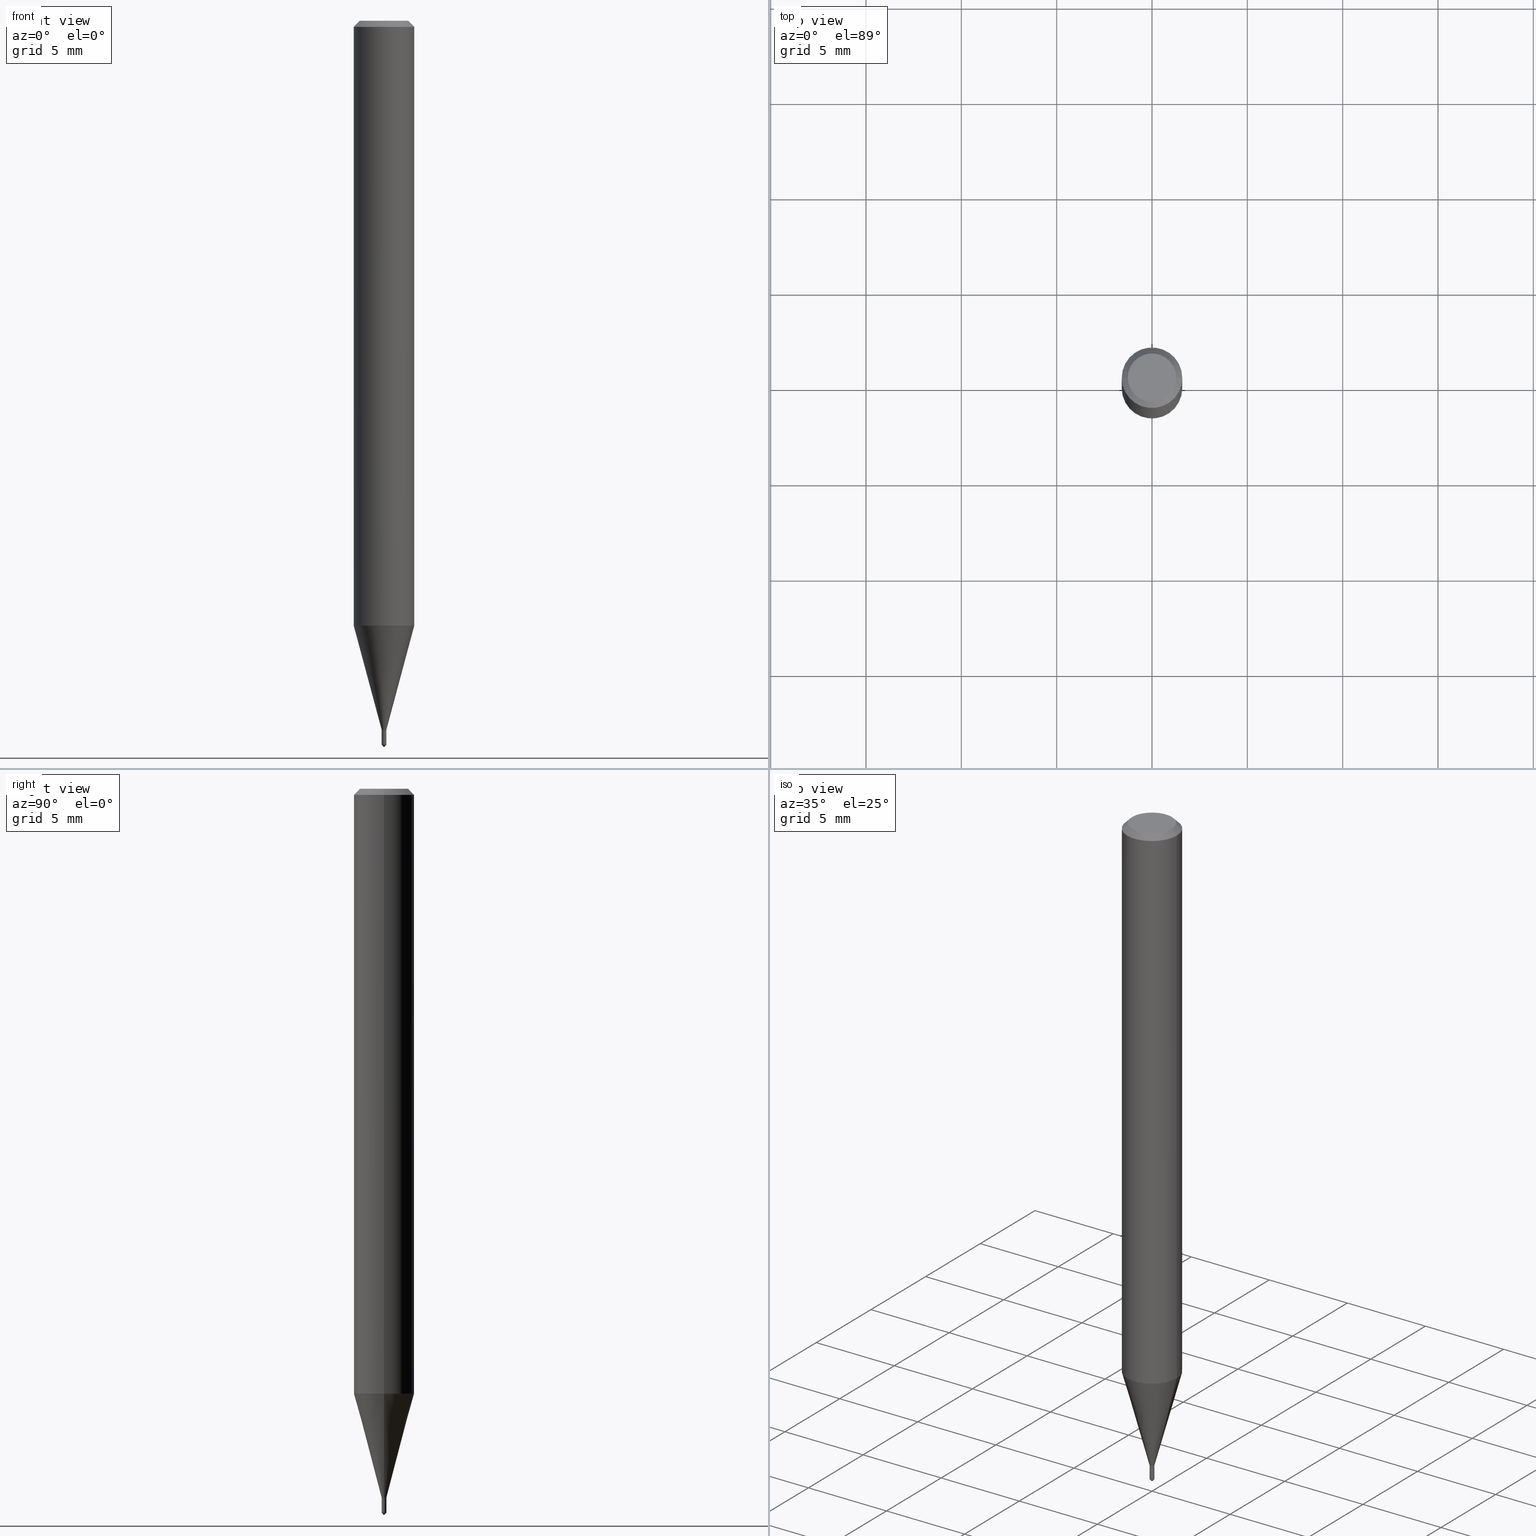
[diagram: canonical four-view strip — front | top / right | iso, engineering-drawing reading convention]
A machine part, canonical four-view strip (front | top / right | iso — engineering-drawing reading convention). The complete STEP part file that produces these views, byte-faithful:
ISO-10303-21;
HEADER;
FILE_DESCRIPTION (( 'STEP AP203' ),
    '1' );
FILE_NAME ('07001.STEP',
    '2024-04-23T19:12:28',
    ( '' ),
    ( '' ),
    'SwSTEP 2.0',
    'SolidWorks 2023',
    '' );
FILE_SCHEMA (( 'CONFIG_CONTROL_DESIGN' ));
ENDSEC;

DATA;
#1 = CARTESIAN_POINT ( 'NONE',  ( 3.578943597851948324E-29, -5.109782939396945261E-15, -1.463500000000000467 ) ) ;
#2 = PRODUCT_DEFINITION ( 'UNKNOWN', '', #485, #318 ) ;
#3 = DIRECTION ( 'NONE',  ( 1.000000000000000000, -6.982962677686267499E-15, 4.876176775795936353E-29 ) ) ;
#4 = ORIENTED_EDGE ( 'NONE', *, *, #297, .F. ) ;
#5 = CYLINDRICAL_SURFACE ( 'NONE', #311, 0.06250000000000006939 ) ;
#6 = CONICAL_SURFACE ( 'NONE', #61, 39.37007874015640851, 0.7853981633974347343 ) ;
#7 = ORIENTED_EDGE ( 'NONE', *, *, #279, .F. ) ;
#8 = ADVANCED_FACE ( 'NONE', ( #66 ), #212, .T. ) ;
#9 = DIRECTION ( 'NONE',  ( 1.000000000000000000, 0.000000000000000000, 0.000000000000000000 ) ) ;
#10 = COORDINATED_UNIVERSAL_TIME_OFFSET ( 5, 0, .BEHIND. ) ;
#11 = AXIS2_PLACEMENT_3D ( 'NONE', #159, #467, #230 ) ;
#12 = DIRECTION ( 'NONE',  ( -2.420277090842882143E-29, 3.527557309036647564E-15, 1.000000000000000000 ) ) ;
#13 = CARTESIAN_POINT ( 'NONE',  ( 3.893286209682126177E-47, -5.558580879666067980E-33, -1.592040838891559689E-18 ) ) ;
#14 = DATE_AND_TIME ( #78, #69 ) ;
#15 = DIRECTION ( 'NONE',  ( 1.000000000000000000, -6.982962677686332975E-15, 0.000000000000000000 ) ) ;
#16 = CIRCLE ( 'NONE', #379, 0.005000000000000000104 ) ;
#17 = EDGE_LOOP ( 'NONE', ( #452, #240, #247, #253 ) ) ;
#18 = PERSON_AND_ORGANIZATION_ROLE ( 'classification_officer' ) ;
#19 = CYLINDRICAL_SURFACE ( 'NONE', #11, 0.005000000000000000104 ) ;
#20 = ADVANCED_FACE ( 'NONE', ( #38 ), #371, .T. ) ;
#21 = ORIENTED_EDGE ( 'NONE', *, *, #314, .T. ) ;
#22 = CYLINDRICAL_SURFACE ( 'NONE', #324, 0.005000000000000000104 ) ;
#23 = ORIENTED_EDGE ( 'NONE', *, *, #59, .T. ) ;
#24 = CARTESIAN_POINT ( 'NONE',  ( 0.004999999999999999237, -5.144697752785376910E-15, -1.463500000000000467 ) ) ;
#25 = ORIENTED_EDGE ( 'NONE', *, *, #158, .F. ) ;
#26 = LINE ( 'NONE', #135, #312 ) ;
#27 = VECTOR ( 'NONE', #336, 39.37007874015748143 ) ;
#28 = ORIENTED_EDGE ( 'NONE', *, *, #40, .F. ) ;
#29 = DIRECTION ( 'NONE',  ( 1.000000000000000000, -6.982962677686265922E-15, 4.876176775795935793E-29 ) ) ;
#30 = CARTESIAN_POINT ( 'NONE',  ( -9.161917814024282472E-28, 1.336417243499693348E-13, 37.87007874015748143 ) ) ;
#31 = DIRECTION ( 'NONE',  ( 1.000000000000000000, -6.982962677686332975E-15, 0.000000000000000000 ) ) ;
#32 = ORIENTED_EDGE ( 'NONE', *, *, #357, .T. ) ;
#33 = CARTESIAN_POINT ( 'NONE',  ( -3.491481338839550324E-17, -0.005000000000005114936, -1.465000000000000302 ) ) ;
#34 = VECTOR ( 'NONE', #228, 39.37007874015748143 ) ;
#35 = EDGE_CURVE ( 'NONE', #111, #294, #302, .T. ) ;
#36 = CARTESIAN_POINT ( 'NONE',  ( 0.000000000000000000, 0.000000000000000000, 0.000000000000000000 ) ) ;
#37 = CARTESIAN_POINT ( 'NONE',  ( -0.004500000000000000527, -5.080396511121893639E-15, -1.465000000000000080 ) ) ;
#38 = FACE_OUTER_BOUND ( 'NONE', #438, .T. ) ;
#39 = EDGE_LOOP ( 'NONE', ( #23, #484, #308, #185 ) ) ;
#40 = EDGE_CURVE ( 'NONE', #152, #478, #458, .T. ) ;
#41 = DIRECTION ( 'NONE',  ( -2.445468806185136597E-29, 3.491481338843145583E-15, 1.000000000000000000 ) ) ;
#42 = EDGE_CURVE ( 'NONE', #362, #390, #239, .T. ) ;
#43 = LENGTH_MEASURE_WITH_UNIT ( LENGTH_MEASURE( 0.02539999999999999897 ), #225 );
#44 = DIRECTION ( 'NONE',  ( -2.445468806185136597E-29, 3.491481338843145583E-15, 1.000000000000000000 ) ) ;
#45 = CIRCLE ( 'NONE', #322, 0.005000000000000000971 ) ;
#46 = CLOSED_SHELL ( 'NONE', ( #95, #332, #8, #123, #50 ) ) ;
#47 = COORDINATED_UNIVERSAL_TIME_OFFSET ( 5, 0, .BEHIND. ) ;
#48 = CARTESIAN_POINT ( 'NONE',  ( 3.581389066658133367E-29, -5.113274420735787479E-15, -1.464500000000000357 ) ) ;
#49 = CARTESIAN_POINT ( 'NONE',  ( 3.582611801061225608E-29, -5.115020161405208983E-15, -1.465000000000000302 ) ) ;
#50 = ADVANCED_FACE ( 'NONE', ( #455 ), #405, .F. ) ;
#51 = DIRECTION ( 'NONE',  ( 0.2588190451025213501, 1.565188264969621968E-15, 0.9659258262890682012 ) ) ;
#52 = EDGE_LOOP ( 'NONE', ( #210, #60, #179, #236 ) ) ;
#53 = CIRCLE ( 'NONE', #360, 0.04999999999999999584 ) ;
#54 = DIRECTION ( 'NONE',  ( 1.000000000000000000, -6.982962677686224112E-15, 0.000000000000000000 ) ) ;
#55 = EDGE_LOOP ( 'NONE', ( #413, #401 ) ) ;
#56 = CARTESIAN_POINT ( 'NONE',  ( 3.581389066658133367E-29, -5.113274420735787479E-15, -1.464500000000000357 ) ) ;
#57 = VERTEX_POINT ( 'NONE', #183 ) ;
#58 = DIRECTION ( 'NONE',  ( -6.982962677686265922E-15, -1.000000000000000000, 0.000000000000000000 ) ) ;
#59 = EDGE_CURVE ( 'NONE', #390, #362, #487, .T. ) ;
#60 = ORIENTED_EDGE ( 'NONE', *, *, #104, .T. ) ;
#61 = AXIS2_PLACEMENT_3D ( 'NONE', #473, #409, #292 ) ;
#62 = FACE_OUTER_BOUND ( 'NONE', #445, .T. ) ;
#63 = CARTESIAN_POINT ( 'NONE',  ( 3.578943597851948324E-29, -5.109782939396945261E-15, -1.463500000000000467 ) ) ;
#64 = APPLICATION_CONTEXT ( 'configuration controlled 3d designs of mechanical parts and assemblies' ) ;
#65 = CARTESIAN_POINT ( 'NONE',  ( 3.056836007731441415E-31, -4.364351673553961684E-17, -0.01250000000000008396 ) ) ;
#66 = FACE_OUTER_BOUND ( 'NONE', #434, .T. ) ;
#67 = DIRECTION ( 'NONE',  ( -2.445468806185136597E-29, 3.491481338843145583E-15, 1.000000000000000000 ) ) ;
#68 = DIRECTION ( 'NONE',  ( -6.982962677686266711E-15, -1.000000000000000000, 0.000000000000000000 ) ) ;
#69 = LOCAL_TIME ( 15, 12, 28.00000000000000000, #47 ) ;
#70 = ORIENTED_EDGE ( 'NONE', *, *, #279, .T. ) ;
#71 = APPLICATION_PROTOCOL_DEFINITION ( 'international standard', 'config_control_design', 1994, #164 ) ;
#72 = ORIENTED_EDGE ( 'NONE', *, *, #175, .T. ) ;
#73 = EDGE_CURVE ( 'NONE', #488, #315, #376, .T. ) ;
#74 = FACE_OUTER_BOUND ( 'NONE', #289, .T. ) ;
#75 = VECTOR ( 'NONE', #76, 39.37007874015748143 ) ;
#76 = DIRECTION ( 'NONE',  ( -2.445468806185136877E-29, 3.491481338843145188E-15, 1.000000000000000000 ) ) ;
#77 = LINE ( 'NONE', #304, #75 ) ;
#78 = CALENDAR_DATE ( 2024, 23, 4 ) ;
#79 = CARTESIAN_POINT ( 'NONE',  ( 3.655220113786512428E-29, -5.220846880676308788E-15, -1.495000000000000329 ) ) ;
#80 = APPROVAL_DATE_TIME ( #14, #201 ) ;
#81 = PLANE ( 'NONE',  #260 ) ;
#82 = AXIS2_PLACEMENT_3D ( 'NONE', #107, #417, #374 ) ;
#83 = ADVANCED_BREP_SHAPE_REPRESENTATION ( '07001', ( #153, #490, #91 ), #267 ) ;
#84 = AXIS2_PLACEMENT_3D ( 'NONE', #277, #465, #313 ) ;
#85 = APPROVAL_STATUS ( 'not_yet_approved' ) ;
#86 = FACE_OUTER_BOUND ( 'NONE', #176, .T. ) ;
#87 = DATE_AND_TIME ( #343, #368 ) ;
#88 = LINE ( 'NONE', #235, #219 ) ;
#89 = ORIENTED_EDGE ( 'NONE', *, *, #367, .T. ) ;
#90 = DIRECTION ( 'NONE',  ( -2.445468806185136597E-29, 3.491481338843145583E-15, 1.000000000000000000 ) ) ;
#91 = AXIS2_PLACEMENT_3D ( 'NONE', #306, #416, #9 ) ;
#92 = EDGE_LOOP ( 'NONE', ( #94, #32, #99, #259 ) ) ;
#93 = CARTESIAN_POINT ( 'NONE',  ( -0.004999999999999999237, -5.076001543278361723E-15, -1.463500000000000467 ) ) ;
#94 = ORIENTED_EDGE ( 'NONE', *, *, #73, .F. ) ;
#95 = ADVANCED_FACE ( 'NONE', ( #349 ), #22, .T. ) ;
#96 = DIRECTION ( 'NONE',  ( -2.445468806185136877E-29, 3.491481338843145188E-15, 1.000000000000000000 ) ) ;
#97 = ORIENTED_EDGE ( 'NONE', *, *, #211, .T. ) ;
#98 = CARTESIAN_POINT ( 'NONE',  ( 3.582611801061225047E-29, -5.115020161405208194E-15, -1.465000000000000080 ) ) ;
#99 = ORIENTED_EDGE ( 'NONE', *, *, #40, .T. ) ;
#100 = CARTESIAN_POINT ( 'NONE',  ( 0.000000000000000000, 0.000000000000000000, 0.000000000000000000 ) ) ;
#101 = ORIENTED_EDGE ( 'NONE', *, *, #430, .T. ) ;
#102 = EDGE_CURVE ( 'NONE', #471, #200, #53, .T. ) ;
#103 = DIRECTION ( 'NONE',  ( 2.445468806185136597E-29, -3.491481338843145583E-15, -1.000000000000000000 ) ) ;
#104 = EDGE_CURVE ( 'NONE', #315, #478, #192, .T. ) ;
#105 = DIRECTION ( 'NONE',  ( 1.000000000000000000, -6.982962677686267499E-15, 4.876176775795936353E-29 ) ) ;
#106 = DIRECTION ( 'NONE',  ( -2.445468806185136597E-29, 3.491481338843145583E-15, 1.000000000000000000 ) ) ;
#107 = CARTESIAN_POINT ( 'NONE',  ( 3.582611801061225608E-29, -5.115020161405208983E-15, -1.465000000000000302 ) ) ;
#108 = VECTOR ( 'NONE', #426, 39.37007874015748143 ) ;
#109 = LINE ( 'NONE', #226, #474 ) ;
#110 = CONICAL_SURFACE ( 'NONE', #285, 0.004999999999999999237, 0.2617993877991500740 ) ;
#111 = VERTEX_POINT ( 'NONE', #428 ) ;
#112 = FACE_OUTER_BOUND ( 'NONE', #39, .T. ) ;
#113 = PERSON_AND_ORGANIZATION ( #126, #291 ) ;
#114 = CC_DESIGN_APPROVAL ( #201, ( #437 ) ) ;
#115 = CARTESIAN_POINT ( 'NONE',  ( 0.004999999999999999237, -5.148189234124219128E-15, -1.464500000000000357 ) ) ;
#116 = VECTOR ( 'NONE', #12, 39.37007874015748143 ) ;
#117 = EDGE_CURVE ( 'NONE', #111, #396, #346, .T. ) ;
#118 = DIRECTION ( 'NONE',  ( 1.000000000000000000, -6.982962677686269077E-15, 0.000000000000000000 ) ) ;
#119 = CARTESIAN_POINT ( 'NONE',  ( 0.04999999999999999584, -4.077247707424184705E-16, -1.592040838888913461E-18 ) ) ;
#120 = DATE_TIME_ROLE ( 'classification_date' ) ;
#121 = DIRECTION ( 'NONE',  ( -2.445468806185136877E-29, 3.491481338843145188E-15, 1.000000000000000000 ) ) ;
#122 = CIRCLE ( 'NONE', #402, 0.06250000000000000000 ) ;
#123 = ADVANCED_FACE ( 'NONE', ( #309 ), #19, .T. ) ;
#124 = PERSON_AND_ORGANIZATION ( #126, #291 ) ;
#125 = DIRECTION ( 'NONE',  ( -2.445468806185136597E-29, 3.491481338843145583E-15, 1.000000000000000000 ) ) ;
#126 = PERSON ( 'UNSPECIFIED', 'UNSPECIFIED', 'UNSPECIFIED', ('UNSPECIFIED'), ('UNSPECIFIED'), ('UNSPECIFIED') ) ;
#127 = ORIENTED_EDGE ( 'NONE', *, *, #175, .F. ) ;
#128 = COORDINATED_UNIVERSAL_TIME_OFFSET ( 5, 0, .BEHIND. ) ;
#129 = FACE_OUTER_BOUND ( 'NONE', #366, .T. ) ;
#130 = VERTEX_POINT ( 'NONE', #165 ) ;
#131 = CARTESIAN_POINT ( 'NONE',  ( 3.056836007731441415E-31, -4.364351673553961684E-17, -0.01250000000000008396 ) ) ;
#132 = AXIS2_PLACEMENT_3D ( 'NONE', #320, #195, #161 ) ;
#133 = ORIENTED_EDGE ( 'NONE', *, *, #460, .T. ) ;
#134 = AXIS2_PLACEMENT_3D ( 'NONE', #281, #436, #54 ) ;
#135 = CARTESIAN_POINT ( 'NONE',  ( 3.704874603925985375E-29, -5.185633370888012832E-15, -1.500000000000000444 ) ) ;
#136 = CC_DESIGN_PERSON_AND_ORGANIZATION_ASSIGNMENT ( #307, #425, ( #2 ) ) ;
#137 = ORIENTED_EDGE ( 'NONE', *, *, #447, .T. ) ;
#138 = FACE_OUTER_BOUND ( 'NONE', #52, .T. ) ;
#139 = ORIENTED_EDGE ( 'NONE', *, *, #59, .F. ) ;
#140 = LINE ( 'NONE', #252, #456 ) ;
#141 = LOCAL_TIME ( 15, 12, 28.00000000000000000, #423 ) ;
#142 = EDGE_CURVE ( 'NONE', #364, #294, #387, .T. ) ;
#143 = ORIENTED_EDGE ( 'NONE', *, *, #142, .F. ) ;
#144 = AXIS2_PLACEMENT_3D ( 'NONE', #180, #103, #169 ) ;
#145 = LINE ( 'NONE', #33, #250 ) ;
#146 = EDGE_LOOP ( 'NONE', ( #173, #72 ) ) ;
#147 = DIRECTION ( 'NONE',  ( -2.445468806185136597E-29, 3.491481338843145583E-15, 1.000000000000000000 ) ) ;
#148 = ORIENTED_EDGE ( 'NONE', *, *, #177, .T. ) ;
#149 = CONICAL_SURFACE ( 'NONE', #208, 0.004999999999999999237, 0.2617993877991500740 ) ;
#150 = VECTOR ( 'NONE', #121, 39.37007874015748143 ) ;
#151 = DIRECTION ( 'NONE',  ( 0.7071067811865453523, -7.319954787623248157E-15, -0.7071067811865496822 ) ) ;
#152 = VERTEX_POINT ( 'NONE', #270 ) ;
#153 = MANIFOLD_SOLID_BREP ( 'Body-Move/Copy2[1]', #46 ) ;
#154 = DIRECTION ( 'NONE',  ( 1.000000000000000000, -6.982962677686265922E-15, 4.876176775795935793E-29 ) ) ;
#155 = CARTESIAN_POINT ( 'NONE',  ( -0.06250000000000013878, -3.916446548908011993E-15, -1.248907078564789996 ) ) ;
#156 = DIRECTION ( 'NONE',  ( 1.000000000000000000, -6.982962677686332975E-15, 0.000000000000000000 ) ) ;
#157 = PERSON_AND_ORGANIZATION ( #126, #291 ) ;
#158 = EDGE_CURVE ( 'NONE', #152, #488, #372, .T. ) ;
#159 = CARTESIAN_POINT ( 'NONE',  ( 3.582611801061225608E-29, -5.115020161405208983E-15, -1.465000000000000302 ) ) ;
#160 = AXIS2_PLACEMENT_3D ( 'NONE', #338, #221, #223 ) ;
#161 = DIRECTION ( 'NONE',  ( 1.000000000000000000, -6.982962677686224112E-15, 0.000000000000000000 ) ) ;
#162 = AXIS2_PLACEMENT_3D ( 'NONE', #400, #284, #486 ) ;
#163 = EDGE_LOOP ( 'NONE', ( #143, #21, #442 ) ) ;
#164 = APPLICATION_CONTEXT ( 'configuration controlled 3d designs of mechanical parts and assemblies' ) ;
#165 = CARTESIAN_POINT ( 'NONE',  ( -3.491481338839550324E-17, -0.005000000000005114936, -1.465000000000000302 ) ) ;
#166 = DIRECTION ( 'NONE',  ( -2.445468806185136597E-29, 3.491481338843145583E-15, 1.000000000000000000 ) ) ;
#167 = ORIENTED_EDGE ( 'NONE', *, *, #117, .T. ) ;
#168 = CC_DESIGN_PERSON_AND_ORGANIZATION_ASSIGNMENT ( #385, #18, ( #437 ) ) ;
#169 = DIRECTION ( 'NONE',  ( -1.000000000000000000, 6.982962677686266711E-15, 0.000000000000000000 ) ) ;
#170 = ORIENTED_EDGE ( 'NONE', *, *, #117, .F. ) ;
#171 = CONICAL_SURFACE ( 'NONE', #134, 0.004500000000000000527, 0.7853981633978213139 ) ;
#172 = DIRECTION ( 'NONE',  ( 5.024295867787992181E-15, 0.7071067811865402453, 0.7071067811865545671 ) ) ;
#173 = ORIENTED_EDGE ( 'NONE', *, *, #305, .T. ) ;
#174 = CARTESIAN_POINT ( 'NONE',  ( 3.893286209682126177E-47, -5.558580879666067980E-33, -1.592040838891559689E-18 ) ) ;
#175 = EDGE_CURVE ( 'NONE', #396, #130, #476, .T. ) ;
#176 = EDGE_LOOP ( 'NONE', ( #321, #353, #481, #244 ) ) ;
#177 = EDGE_CURVE ( 'NONE', #393, #214, #389, .T. ) ;
#178 = DIRECTION ( 'NONE',  ( -2.445468806185136597E-29, 3.491481338843145583E-15, 1.000000000000000000 ) ) ;
#179 = ORIENTED_EDGE ( 'NONE', *, *, #297, .T. ) ;
#180 = CARTESIAN_POINT ( 'NONE',  ( 3.056836007731441415E-31, -4.364351673553961684E-17, -0.01250000000000008396 ) ) ;
#181 = CARTESIAN_POINT ( 'NONE',  ( 3.655220113786512428E-29, -5.220846880676308788E-15, -1.495000000000000329 ) ) ;
#182 = DIRECTION ( 'NONE',  ( -2.438088387897960049E-29, 3.491481338843145188E-15, 1.000000000000000000 ) ) ;
#183 = CARTESIAN_POINT ( 'NONE',  ( -0.06250000000000000000, -1.758000427896742892E-15, -0.01250000000000008396 ) ) ;
#184 = MECHANICAL_CONTEXT ( 'NONE', #164, 'mechanical' ) ;
#185 = ORIENTED_EDGE ( 'NONE', *, *, #241, .F. ) ;
#186 = APPROVAL_PERSON_ORGANIZATION ( #124, #243, #464 ) ;
#187 = CONICAL_SURFACE ( 'NONE', #144, 0.06250000000000000000, 0.7853981633974452814 ) ;
#188 = CARTESIAN_POINT ( 'NONE',  ( 3.578943597851948324E-29, -5.109782939396945261E-15, -1.463500000000000467 ) ) ;
#189 = ADVANCED_FACE ( 'NONE', ( #86 ), #110, .T. ) ;
#190 = SECURITY_CLASSIFICATION_LEVEL ( 'unclassified' ) ;
#191 = AXIS2_PLACEMENT_3D ( 'NONE', #298, #182, #154 ) ;
#192 = CIRCLE ( 'NONE', #303, 0.004999999999999999237 ) ;
#193 = DIRECTION ( 'NONE',  ( -1.000000000000000000, 6.982962677686265922E-15, -4.876176775795935793E-29 ) ) ;
#194 = CIRCLE ( 'NONE', #209, 0.004999999999999999237 ) ;
#195 = DIRECTION ( 'NONE',  ( -2.445468806185136597E-29, 3.491481338843145583E-15, 1.000000000000000000 ) ) ;
#196 = CARTESIAN_POINT ( 'NONE',  ( 1.946643104841063088E-47, -2.779290439833033990E-33, -7.960204194457798443E-19 ) ) ;
#197 = AXIS2_PLACEMENT_3D ( 'NONE', #100, #363, #29 ) ;
#198 = CARTESIAN_POINT ( 'NONE',  ( -0.06250000000000006939, 4.440892098500631092E-16, -3.074334431409319617E-30 ) ) ;
#199 = AXIS2_PLACEMENT_3D ( 'NONE', #446, #178, #397 ) ;
#200 = VERTEX_POINT ( 'NONE', #119 ) ;
#201 = APPROVAL ( #85, 'UNSPECIFIED' ) ;
#202 = FACE_OUTER_BOUND ( 'NONE', #333, .T. ) ;
#203 = ADVANCED_FACE ( 'NONE', ( #391 ), #81, .F. ) ;
#204 = ORIENTED_EDGE ( 'NONE', *, *, #237, .T. ) ;
#205 = DIRECTION ( 'NONE',  ( 2.445468806185136597E-29, -3.491481338843145583E-15, -1.000000000000000000 ) ) ;
#206 = ORIENTED_EDGE ( 'NONE', *, *, #102, .F. ) ;
#207 = DIRECTION ( 'NONE',  ( -2.420277090842882143E-29, 3.527557309036647564E-15, 1.000000000000000000 ) ) ;
#208 = AXIS2_PLACEMENT_3D ( 'NONE', #188, #41, #457 ) ;
#209 = AXIS2_PLACEMENT_3D ( 'NONE', #56, #254, #31 ) ;
#210 = ORIENTED_EDGE ( 'NONE', *, *, #460, .F. ) ;
#211 = EDGE_CURVE ( 'NONE', #294, #111, #45, .T. ) ;
#212 = CONICAL_SURFACE ( 'NONE', #231, 39.37007874015640851, 0.7853981633974347343 ) ;
#213 = CYLINDRICAL_SURFACE ( 'NONE', #197, 0.004999999999999999237 ) ;
#214 = VERTEX_POINT ( 'NONE', #470 ) ;
#215 = DIRECTION ( 'NONE',  ( -2.445468806185136597E-29, 3.491481338843145583E-15, 1.000000000000000000 ) ) ;
#216 = ORIENTED_EDGE ( 'NONE', *, *, #480, .F. ) ;
#217 = CARTESIAN_POINT ( 'NONE',  ( 3.056836007731441415E-31, -4.364351673553961684E-17, -0.01250000000000008396 ) ) ;
#218 = ORIENTED_EDGE ( 'NONE', *, *, #73, .T. ) ;
#219 = VECTOR ( 'NONE', #51, 39.37007874015747433 ) ;
#220 = DIRECTION ( 'NONE',  ( -2.445468806185136597E-29, 3.491481338843145583E-15, 1.000000000000000000 ) ) ;
#221 = DIRECTION ( 'NONE',  ( -2.445468806185136597E-29, 3.491481338843145583E-15, 1.000000000000000000 ) ) ;
#222 = DIRECTION ( 'NONE',  ( 1.000000000000000000, -6.982962677686332975E-15, 0.000000000000000000 ) ) ;
#223 = DIRECTION ( 'NONE',  ( 1.000000000000000000, -6.982962677686269077E-15, 0.000000000000000000 ) ) ;
#224 = CIRCLE ( 'NONE', #162, 0.004500000000000000527 ) ;
#225 =( LENGTH_UNIT ( ) NAMED_UNIT ( * ) SI_UNIT ( $, .METRE. ) );
#226 = CARTESIAN_POINT ( 'NONE',  ( 0.06250000000000000000, -4.724246415962603826E-16, -0.01250000000000008396 ) ) ;
#227 = SHAPE_DEFINITION_REPRESENTATION ( #232, #83 ) ;
#228 = DIRECTION ( 'NONE',  ( -0.7071067811868112507, 7.493145998871307104E-15, 0.7071067811862837837 ) ) ;
#229 = DATE_AND_TIME ( #316, #257 ) ;
#230 = DIRECTION ( 'NONE',  ( -6.982962677686265922E-15, -1.000000000000000000, 0.000000000000000000 ) ) ;
#231 = AXIS2_PLACEMENT_3D ( 'NONE', #30, #454, #301 ) ;
#232 = PRODUCT_DEFINITION_SHAPE ( 'NONE', 'NONE',  #2 ) ;
#233 = COORDINATED_UNIVERSAL_TIME_OFFSET ( 5, 0, .BEHIND. ) ;
#234 = CARTESIAN_POINT ( 'NONE',  ( 3.054163302454003505E-29, -4.360535758758074609E-15, -1.248907078564789996 ) ) ;
#235 = CARTESIAN_POINT ( 'NONE',  ( 0.004999999999999999237, -5.144697752785376910E-15, -1.463500000000000467 ) ) ;
#236 = ORIENTED_EDGE ( 'NONE', *, *, #42, .F. ) ;
#237 = EDGE_CURVE ( 'NONE', #393, #475, #386, .T. ) ;
#238 = LINE ( 'NONE', #198, #108 ) ;
#239 = CIRCLE ( 'NONE', #334, 0.004999999999999999237 ) ;
#240 = ORIENTED_EDGE ( 'NONE', *, *, #480, .T. ) ;
#241 = EDGE_CURVE ( 'NONE', #390, #393, #88, .T. ) ;
#242 = CARTESIAN_POINT ( 'NONE',  ( 3.630415636264324195E-29, -5.291335963554972135E-15, -1.500000000000000444 ) ) ;
#243 = APPROVAL ( #394, 'UNSPECIFIED' ) ;
#244 = ORIENTED_EDGE ( 'NONE', *, *, #447, .F. ) ;
#245 = DIRECTION ( 'NONE',  ( -0.7071067811865453523, 2.468850131082234184E-15, -0.7071067811865496822 ) ) ;
#246 = EDGE_CURVE ( 'NONE', #475, #57, #238, .T. ) ;
#247 = ORIENTED_EDGE ( 'NONE', *, *, #351, .T. ) ;
#248 = CARTESIAN_POINT ( 'NONE',  ( 3.552713678804156264E-17, 0.004999999999994885272, -1.465000000000000302 ) ) ;
#249 = AXIS2_PLACEMENT_3D ( 'NONE', #65, #215, #418 ) ;
#250 = VECTOR ( 'NONE', #207, 39.37007874015748143 ) ;
#251 = ORIENTED_EDGE ( 'NONE', *, *, #348, .T. ) ;
#252 = CARTESIAN_POINT ( 'NONE',  ( -0.004999999999999999237, -5.074255802608940220E-15, -1.463500000000000467 ) ) ;
#253 = ORIENTED_EDGE ( 'NONE', *, *, #348, .F. ) ;
#254 = DIRECTION ( 'NONE',  ( -2.445468806185136597E-29, 3.491481338843145583E-15, 1.000000000000000000 ) ) ;
#255 = DIRECTION ( 'NONE',  ( -2.420277090842882143E-29, 3.527557309036647170E-15, 1.000000000000000000 ) ) ;
#256 = DATE_AND_TIME ( #381, #141 ) ;
#257 = LOCAL_TIME ( 15, 12, 28.00000000000000000, #233 ) ;
#258 = CC_DESIGN_PERSON_AND_ORGANIZATION_ASSIGNMENT ( #435, #382, ( #485 ) ) ;
#259 = ORIENTED_EDGE ( 'NONE', *, *, #104, .F. ) ;
#260 = AXIS2_PLACEMENT_3D ( 'NONE', #196, #275, #193 ) ;
#261 = CONICAL_SURFACE ( 'NONE', #293, 0.06250000000000000000, 0.7853981633974452814 ) ;
#262 = CARTESIAN_POINT ( 'NONE',  ( 0.004500000000000000527, -5.146443493454796047E-15, -1.465000000000000080 ) ) ;
#263 = CARTESIAN_POINT ( 'NONE',  ( 0.000000000000000000, 0.000000000000000000, 0.000000000000000000 ) ) ;
#264 = ADVANCED_FACE ( 'NONE', ( #129 ), #171, .T. ) ;
#265 = APPLICATION_PROTOCOL_DEFINITION ( 'international standard', 'config_control_design', 1994, #64 ) ;
#266 = ADVANCED_FACE ( 'NONE', ( #202 ), #261, .T. ) ;
#267 =( GEOMETRIC_REPRESENTATION_CONTEXT ( 3 ) GLOBAL_UNCERTAINTY_ASSIGNED_CONTEXT ( ( #404 ) ) GLOBAL_UNIT_ASSIGNED_CONTEXT ( ( #268, #373, #380 ) ) REPRESENTATION_CONTEXT ( 'NONE', 'WORKASPACE' ) );
#268 =( CONVERSION_BASED_UNIT ( 'INCH', #43 ) LENGTH_UNIT ( ) NAMED_UNIT ( #444 ) );
#269 = CLOSED_SHELL ( 'NONE', ( #264, #375, #20, #482, #406, #388, #189, #439, #266, #203, #472, #344 ) ) ;
#270 = CARTESIAN_POINT ( 'NONE',  ( 0.004500000000000000527, -5.146443493454796047E-15, -1.465000000000000080 ) ) ;
#271 = PERSON_AND_ORGANIZATION_ROLE ( 'creator' ) ;
#272 = DIRECTION ( 'NONE',  ( 1.000000000000000000, -6.982962677686265922E-15, 4.875957971899673662E-29 ) ) ;
#273 = DATE_AND_TIME ( #462, #330 ) ;
#274 = VECTOR ( 'NONE', #96, 39.37007874015748143 ) ;
#275 = DIRECTION ( 'NONE',  ( 2.438088387897960049E-29, -3.491481338843145188E-15, -1.000000000000000000 ) ) ;
#276 = VECTOR ( 'NONE', #383, 39.37007874015748143 ) ;
#277 = CARTESIAN_POINT ( 'NONE',  ( 3.582611801061225608E-29, -5.115020161405208983E-15, -1.465000000000000302 ) ) ;
#278 = ORIENTED_EDGE ( 'NONE', *, *, #305, .F. ) ;
#279 = EDGE_CURVE ( 'NONE', #478, #315, #194, .T. ) ;
#280 = APPROVAL_DATE_TIME ( #229, #243 ) ;
#281 = CARTESIAN_POINT ( 'NONE',  ( 3.582611801061225047E-29, -5.115020161405208194E-15, -1.465000000000000080 ) ) ;
#282 = ORIENTED_EDGE ( 'NONE', *, *, #351, .F. ) ;
#283 = APPROVAL_PERSON_ORGANIZATION ( #157, #201, #432 ) ;
#284 = DIRECTION ( 'NONE',  ( -2.445468806185136597E-29, 3.491481338843145583E-15, 1.000000000000000000 ) ) ;
#285 = AXIS2_PLACEMENT_3D ( 'NONE', #395, #166, #15 ) ;
#286 = ORIENTED_EDGE ( 'NONE', *, *, #246, .T. ) ;
#287 = CARTESIAN_POINT ( 'NONE',  ( -0.004999999999999999237, -5.076001543278361723E-15, -1.464500000000000357 ) ) ;
#288 = CYLINDRICAL_SURFACE ( 'NONE', #199, 0.004999999999999999237 ) ;
#289 = EDGE_LOOP ( 'NONE', ( #408, #137, #148, #325 ) ) ;
#290 = PRODUCT ( '07001', '07001', '', ( #184 ) ) ;
#291 = ORGANIZATION ( 'UNSPECIFIED', 'UNSPECIFIED', '' ) ;
#292 = DIRECTION ( 'NONE',  ( -6.982962677686266711E-15, -1.000000000000000000, 3.552713678800597959E-15 ) ) ;
#293 = AXIS2_PLACEMENT_3D ( 'NONE', #217, #205, #369 ) ;
#294 = VERTEX_POINT ( 'NONE', #453 ) ;
#295 = CARTESIAN_POINT ( 'NONE',  ( 0.06250000000000013878, -4.796970926113467068E-15, -1.248907078564789996 ) ) ;
#296 = ORIENTED_EDGE ( 'NONE', *, *, #314, .F. ) ;
#297 = EDGE_CURVE ( 'NONE', #478, #390, #361, .T. ) ;
#298 = CARTESIAN_POINT ( 'NONE',  ( 6.568686764767023854E-28, 8.382180896566472079E-14, -1.465000000000000302 ) ) ;
#299 = DIRECTION ( 'NONE',  ( 1.000000000000000000, -6.982962677686332975E-15, 0.000000000000000000 ) ) ;
#300 = CARTESIAN_POINT ( 'NONE',  ( -0.04999999999999999584, 3.709698922520826725E-16, -1.592040838894077649E-18 ) ) ;
#301 = DIRECTION ( 'NONE',  ( -6.982962677686266711E-15, -1.000000000000000000, 3.552713678800597959E-15 ) ) ;
#302 = CIRCLE ( 'NONE', #412, 0.005000000000000000971 ) ;
#303 = AXIS2_PLACEMENT_3D ( 'NONE', #48, #44, #156 ) ;
#304 = CARTESIAN_POINT ( 'NONE',  ( -0.004999999999999999237, 3.552713678800500387E-17, -2.459467545127452698E-31 ) ) ;
#305 = EDGE_CURVE ( 'NONE', #130, #396, #16, .T. ) ;
#306 = CARTESIAN_POINT ( 'NONE',  ( 0.000000000000000000, 0.000000000000000000, 0.000000000000000000 ) ) ;
#307 = PERSON_AND_ORGANIZATION ( #126, #291 ) ;
#308 = ORIENTED_EDGE ( 'NONE', *, *, #237, .F. ) ;
#309 = FACE_OUTER_BOUND ( 'NONE', #339, .T. ) ;
#310 = DIRECTION ( 'NONE',  ( -6.982962677686265922E-15, -1.000000000000000000, 0.000000000000000000 ) ) ;
#311 = AXIS2_PLACEMENT_3D ( 'NONE', #263, #106, #3 ) ;
#312 = VECTOR ( 'NONE', #172, 39.37007874015748854 ) ;
#313 = DIRECTION ( 'NONE',  ( -6.982962677686265922E-15, -1.000000000000000000, 0.000000000000000000 ) ) ;
#314 = EDGE_CURVE ( 'NONE', #364, #111, #26, .T. ) ;
#315 = VERTEX_POINT ( 'NONE', #287 ) ;
#316 = CALENDAR_DATE ( 2024, 23, 4 ) ;
#317 = DIRECTION ( 'NONE',  ( -6.982962677686266711E-15, -1.000000000000000000, 0.000000000000000000 ) ) ;
#318 = DESIGN_CONTEXT ( 'detailed design', #64, 'design' ) ;
#319 = ORIENTED_EDGE ( 'NONE', *, *, #158, .T. ) ;
#320 = CARTESIAN_POINT ( 'NONE',  ( 3.582611801061225047E-29, -5.115020161405208194E-15, -1.465000000000000080 ) ) ;
#321 = ORIENTED_EDGE ( 'NONE', *, *, #422, .F. ) ;
#322 = AXIS2_PLACEMENT_3D ( 'NONE', #79, #431, #317 ) ;
#323 = DIRECTION ( 'NONE',  ( 1.000000000000000000, -6.982962677686224112E-15, 0.000000000000000000 ) ) ;
#324 = AXIS2_PLACEMENT_3D ( 'NONE', #49, #352, #310 ) ;
#325 = ORIENTED_EDGE ( 'NONE', *, *, #430, .F. ) ;
#326 = CARTESIAN_POINT ( 'NONE',  ( 3.582611801061225608E-29, -5.115020161405208983E-15, -1.465000000000000302 ) ) ;
#327 = DIRECTION ( 'NONE',  ( -2.445468806185136597E-29, 3.491481338843145583E-15, 1.000000000000000000 ) ) ;
#328 = ORIENTED_EDGE ( 'NONE', *, *, #142, .T. ) ;
#329 = PRODUCT_RELATED_PRODUCT_CATEGORY ( 'detail', '', ( #290 ) ) ;
#330 = LOCAL_TIME ( 15, 12, 28.00000000000000000, #10 ) ;
#331 = DIRECTION ( 'NONE',  ( -2.420277090842882143E-29, 3.527557309036647170E-15, 1.000000000000000000 ) ) ;
#332 = ADVANCED_FACE ( 'NONE', ( #477 ), #6, .T. ) ;
#333 = EDGE_LOOP ( 'NONE', ( #216, #206, #251, #101 ) ) ;
#334 = AXIS2_PLACEMENT_3D ( 'NONE', #1, #147, #299 ) ;
#335 = PERSON_AND_ORGANIZATION_ROLE ( 'design_owner' ) ;
#336 = DIRECTION ( 'NONE',  ( 0.7071067811868112507, -2.468850131085019257E-15, 0.7071067811862837837 ) ) ;
#337 = DIRECTION ( 'NONE',  ( -2.445468806185136597E-29, 3.491481338843145583E-15, 1.000000000000000000 ) ) ;
#338 = CARTESIAN_POINT ( 'NONE',  ( 3.054163302454003505E-29, -4.360535758758074609E-15, -1.248907078564789996 ) ) ;
#339 = EDGE_LOOP ( 'NONE', ( #170, #399, #89, #127 ) ) ;
#340 = CONICAL_SURFACE ( 'NONE', #421, 0.004500000000000000527, 0.7853981633978213139 ) ;
#341 = AXIS2_PLACEMENT_3D ( 'NONE', #63, #337, #222 ) ;
#342 = APPROVAL_STATUS ( 'not_yet_approved' ) ;
#343 = CALENDAR_DATE ( 2024, 23, 4 ) ;
#344 = ADVANCED_FACE ( 'NONE', ( #356 ), #340, .T. ) ;
#345 = CC_DESIGN_PERSON_AND_ORGANIZATION_ASSIGNMENT ( #429, #271, ( #485 ) ) ;
#346 = LINE ( 'NONE', #433, #116 ) ;
#347 = CARTESIAN_POINT ( 'NONE',  ( 0.06250000000000006939, -4.364351673553922118E-16, 3.047610484872463724E-30 ) ) ;
#348 = EDGE_CURVE ( 'NONE', #471, #57, #443, .T. ) ;
#349 = FACE_OUTER_BOUND ( 'NONE', #463, .T. ) ;
#350 = APPROVAL_PERSON_ORGANIZATION ( #419, #398, #461 ) ;
#351 = EDGE_CURVE ( 'NONE', #214, #57, #122, .T. ) ;
#352 = DIRECTION ( 'NONE',  ( -2.420277090842882143E-29, 3.527557309036647170E-15, 1.000000000000000000 ) ) ;
#353 = ORIENTED_EDGE ( 'NONE', *, *, #42, .T. ) ;
#354 = CARTESIAN_POINT ( 'NONE',  ( -0.004500000000000000527, -5.083045738296003263E-15, -1.465000000000000080 ) ) ;
#355 = EDGE_LOOP ( 'NONE', ( #25, #468 ) ) ;
#356 = FACE_OUTER_BOUND ( 'NONE', #92, .T. ) ;
#357 = EDGE_CURVE ( 'NONE', #488, #152, #224, .T. ) ;
#358 = ORIENTED_EDGE ( 'NONE', *, *, #35, .F. ) ;
#359 = CIRCLE ( 'NONE', #249, 0.06250000000000000000 ) ;
#360 = AXIS2_PLACEMENT_3D ( 'NONE', #13, #90, #272 ) ;
#361 = LINE ( 'NONE', #403, #274 ) ;
#362 = VERTEX_POINT ( 'NONE', #93 ) ;
#363 = DIRECTION ( 'NONE',  ( -2.445468806185136597E-29, 3.491481338843145583E-15, 1.000000000000000000 ) ) ;
#364 = VERTEX_POINT ( 'NONE', #242 ) ;
#365 = CARTESIAN_POINT ( 'NONE',  ( -0.06250000000000000000, 3.927916506198520587E-16, -0.01250000000000008396 ) ) ;
#366 = EDGE_LOOP ( 'NONE', ( #319, #218, #7, #28 ) ) ;
#367 = EDGE_CURVE ( 'NONE', #294, #130, #145, .T. ) ;
#368 = LOCAL_TIME ( 15, 12, 28.00000000000000000, #128 ) ;
#369 = DIRECTION ( 'NONE',  ( -1.000000000000000000, 6.982962677686266711E-15, 0.000000000000000000 ) ) ;
#370 = CC_DESIGN_DATE_AND_TIME_ASSIGNMENT ( #87, #427, ( #2 ) ) ;
#371 = CYLINDRICAL_SURFACE ( 'NONE', #414, 0.06250000000000006939 ) ;
#372 = CIRCLE ( 'NONE', #132, 0.004500000000000000527 ) ;
#373 =( NAMED_UNIT ( * ) PLANE_ANGLE_UNIT ( ) SI_UNIT ( $, .RADIAN. ) );
#374 = DIRECTION ( 'NONE',  ( 6.982962677686265922E-15, 1.000000000000000000, -3.527557309036647564E-15 ) ) ;
#375 = ADVANCED_FACE ( 'NONE', ( #479 ), #187, .T. ) ;
#376 = LINE ( 'NONE', #354, #34 ) ;
#377 = FACE_OUTER_BOUND ( 'NONE', #355, .T. ) ;
#378 = CIRCLE ( 'NONE', #449, 0.04999999999999999584 ) ;
#379 = AXIS2_PLACEMENT_3D ( 'NONE', #326, #331, #58 ) ;
#380 =( NAMED_UNIT ( * ) SI_UNIT ( $, .STERADIAN. ) SOLID_ANGLE_UNIT ( ) );
#381 = CALENDAR_DATE ( 2024, 23, 4 ) ;
#382 = PERSON_AND_ORGANIZATION_ROLE ( 'design_supplier' ) ;
#383 = DIRECTION ( 'NONE',  ( -4.937700262164480989E-15, -0.7071067811865354713, 0.7071067811865595631 ) ) ;
#384 = CC_DESIGN_APPROVAL ( #398, ( #2 ) ) ;
#385 = PERSON_AND_ORGANIZATION ( #126, #291 ) ;
#386 = CIRCLE ( 'NONE', #441, 0.06250000000000015266 ) ;
#387 = LINE ( 'NONE', #466, #276 ) ;
#388 = ADVANCED_FACE ( 'NONE', ( #138 ), #288, .T. ) ;
#389 = LINE ( 'NONE', #347, #150 ) ;
#390 = VERTEX_POINT ( 'NONE', #24 ) ;
#391 = FACE_OUTER_BOUND ( 'NONE', #55, .T. ) ;
#392 = CC_DESIGN_SECURITY_CLASSIFICATION ( #437, ( #485 ) ) ;
#393 = VERTEX_POINT ( 'NONE', #295 ) ;
#394 = APPROVAL_STATUS ( 'not_yet_approved' ) ;
#395 = CARTESIAN_POINT ( 'NONE',  ( 3.578943597851948324E-29, -5.109782939396945261E-15, -1.463500000000000467 ) ) ;
#396 = VERTEX_POINT ( 'NONE', #248 ) ;
#397 = DIRECTION ( 'NONE',  ( 1.000000000000000000, -6.982962677686265922E-15, 4.876176775795935793E-29 ) ) ;
#398 = APPROVAL ( #342, 'UNSPECIFIED' ) ;
#399 = ORIENTED_EDGE ( 'NONE', *, *, #35, .T. ) ;
#400 = CARTESIAN_POINT ( 'NONE',  ( 3.582611801061225047E-29, -5.115020161405208194E-15, -1.465000000000000080 ) ) ;
#401 = ORIENTED_EDGE ( 'NONE', *, *, #415, .T. ) ;
#402 = AXIS2_PLACEMENT_3D ( 'NONE', #131, #67, #451 ) ;
#403 = CARTESIAN_POINT ( 'NONE',  ( 0.004999999999999999237, -3.491481338843132246E-17, 2.438088387897967546E-31 ) ) ;
#404 = UNCERTAINTY_MEASURE_WITH_UNIT (LENGTH_MEASURE( 1.000000000000000082E-05 ), #268, 'distance_accuracy_value', 'NONE');
#405 = PLANE ( 'NONE',  #82 ) ;
#406 = ADVANCED_FACE ( 'NONE', ( #62 ), #213, .T. ) ;
#407 = DIRECTION ( 'NONE',  ( -0.2588190451025213501, 5.211531920934551042E-15, 0.9659258262890682012 ) ) ;
#408 = ORIENTED_EDGE ( 'NONE', *, *, #246, .F. ) ;
#409 = DIRECTION ( 'NONE',  ( -2.420277090842882143E-29, 3.527557309036647170E-15, 1.000000000000000000 ) ) ;
#410 = ORIENTED_EDGE ( 'NONE', *, *, #177, .F. ) ;
#411 = CIRCLE ( 'NONE', #160, 0.06250000000000015266 ) ;
#412 = AXIS2_PLACEMENT_3D ( 'NONE', #181, #255, #68 ) ;
#413 = ORIENTED_EDGE ( 'NONE', *, *, #102, .T. ) ;
#414 = AXIS2_PLACEMENT_3D ( 'NONE', #36, #220, #105 ) ;
#415 = EDGE_CURVE ( 'NONE', #200, #471, #378, .T. ) ;
#416 = DIRECTION ( 'NONE',  ( 0.000000000000000000, 0.000000000000000000, 1.000000000000000000 ) ) ;
#417 = DIRECTION ( 'NONE',  ( 2.420277090842881582E-29, -3.527557309036647564E-15, -1.000000000000000000 ) ) ;
#418 = DIRECTION ( 'NONE',  ( 1.000000000000000000, -6.982962677686266711E-15, 0.000000000000000000 ) ) ;
#419 = PERSON_AND_ORGANIZATION ( #126, #291 ) ;
#420 = CC_DESIGN_APPROVAL ( #243, ( #485 ) ) ;
#421 = AXIS2_PLACEMENT_3D ( 'NONE', #98, #440, #323 ) ;
#422 = EDGE_CURVE ( 'NONE', #362, #475, #140, .T. ) ;
#423 = COORDINATED_UNIVERSAL_TIME_OFFSET ( 5, 0, .BEHIND. ) ;
#424 = CC_DESIGN_PERSON_AND_ORGANIZATION_ASSIGNMENT ( #113, #335, ( #290 ) ) ;
#425 = PERSON_AND_ORGANIZATION_ROLE ( 'creator' ) ;
#426 = DIRECTION ( 'NONE',  ( -2.445468806185136877E-29, 3.491481338843145188E-15, 1.000000000000000000 ) ) ;
#427 = DATE_TIME_ROLE ( 'creation_date' ) ;
#428 = CARTESIAN_POINT ( 'NONE',  ( 3.552713678804155648E-17, 0.004999999999994779454, -1.495000000000000329 ) ) ;
#429 = PERSON_AND_ORGANIZATION ( #126, #291 ) ;
#430 = EDGE_CURVE ( 'NONE', #57, #214, #359, .T. ) ;
#431 = DIRECTION ( 'NONE',  ( -2.420277090842882143E-29, 3.527557309036647170E-15, 1.000000000000000000 ) ) ;
#432 = APPROVAL_ROLE ( '' ) ;
#433 = CARTESIAN_POINT ( 'NONE',  ( 3.552713678804082925E-17, 0.004999999999994885272, -1.465000000000000302 ) ) ;
#434 = EDGE_LOOP ( 'NONE', ( #296, #328, #358 ) ) ;
#435 = PERSON_AND_ORGANIZATION ( #126, #291 ) ;
#436 = DIRECTION ( 'NONE',  ( -2.445468806185136597E-29, 3.491481338843145583E-15, 1.000000000000000000 ) ) ;
#437 = SECURITY_CLASSIFICATION ( '', '', #190 ) ;
#438 = EDGE_LOOP ( 'NONE', ( #204, #286, #282, #410 ) ) ;
#439 = ADVANCED_FACE ( 'NONE', ( #74 ), #5, .T. ) ;
#440 = DIRECTION ( 'NONE',  ( -2.445468806185136597E-29, 3.491481338843145583E-15, 1.000000000000000000 ) ) ;
#441 = AXIS2_PLACEMENT_3D ( 'NONE', #234, #125, #118 ) ;
#442 = ORIENTED_EDGE ( 'NONE', *, *, #211, .F. ) ;
#443 = LINE ( 'NONE', #365, #450 ) ;
#444 = DIMENSIONAL_EXPONENTS ( 1.000000000000000000, 0.000000000000000000, 0.000000000000000000, 0.000000000000000000, 0.000000000000000000, 0.000000000000000000, 0.000000000000000000 ) ;
#445 = EDGE_LOOP ( 'NONE', ( #70, #133, #139, #4 ) ) ;
#446 = CARTESIAN_POINT ( 'NONE',  ( 0.000000000000000000, 0.000000000000000000, 0.000000000000000000 ) ) ;
#447 = EDGE_CURVE ( 'NONE', #475, #393, #411, .T. ) ;
#448 = ORIENTED_EDGE ( 'NONE', *, *, #367, .F. ) ;
#449 = AXIS2_PLACEMENT_3D ( 'NONE', #174, #327, #483 ) ;
#450 = VECTOR ( 'NONE', #245, 39.37007874015748143 ) ;
#451 = DIRECTION ( 'NONE',  ( 1.000000000000000000, -6.982962677686266711E-15, 0.000000000000000000 ) ) ;
#452 = ORIENTED_EDGE ( 'NONE', *, *, #415, .F. ) ;
#453 = CARTESIAN_POINT ( 'NONE',  ( -3.491481338839478218E-17, -0.005000000000005221622, -1.495000000000000329 ) ) ;
#454 = DIRECTION ( 'NONE',  ( -2.420277090842882143E-29, 3.527557309036647170E-15, 1.000000000000000000 ) ) ;
#455 = FACE_OUTER_BOUND ( 'NONE', #146, .T. ) ;
#456 = VECTOR ( 'NONE', #407, 39.37007874015747433 ) ;
#457 = DIRECTION ( 'NONE',  ( 1.000000000000000000, -6.982962677686332975E-15, 0.000000000000000000 ) ) ;
#458 = LINE ( 'NONE', #262, #27 ) ;
#459 = PLANE ( 'NONE',  #191 ) ;
#460 = EDGE_CURVE ( 'NONE', #315, #362, #77, .T. ) ;
#461 = APPROVAL_ROLE ( '' ) ;
#462 = CALENDAR_DATE ( 2024, 23, 4 ) ;
#463 = EDGE_LOOP ( 'NONE', ( #97, #167, #278, #448 ) ) ;
#464 = APPROVAL_ROLE ( '' ) ;
#465 = DIRECTION ( 'NONE',  ( -2.420277090842882143E-29, 3.527557309036647170E-15, 1.000000000000000000 ) ) ;
#466 = CARTESIAN_POINT ( 'NONE',  ( 3.630415636264324756E-29, -5.291335963554972135E-15, -1.500000000000000444 ) ) ;
#467 = DIRECTION ( 'NONE',  ( -2.420277090842882143E-29, 3.527557309036647170E-15, 1.000000000000000000 ) ) ;
#468 = ORIENTED_EDGE ( 'NONE', *, *, #357, .F. ) ;
#469 = APPROVAL_DATE_TIME ( #256, #398 ) ;
#470 = CARTESIAN_POINT ( 'NONE',  ( 0.06250000000000000000, -4.800786840909313294E-16, -0.01250000000000008396 ) ) ;
#471 = VERTEX_POINT ( 'NONE', #300 ) ;
#472 = ADVANCED_FACE ( 'NONE', ( #377 ), #459, .F. ) ;
#473 = CARTESIAN_POINT ( 'NONE',  ( -9.161917814024282472E-28, 1.336417243499693348E-13, 37.87007874015748143 ) ) ;
#474 = VECTOR ( 'NONE', #151, 39.37007874015748143 ) ;
#475 = VERTEX_POINT ( 'NONE', #155 ) ;
#476 = CIRCLE ( 'NONE', #84, 0.005000000000000000104 ) ;
#477 = FACE_OUTER_BOUND ( 'NONE', #163, .T. ) ;
#478 = VERTEX_POINT ( 'NONE', #115 ) ;
#479 = FACE_OUTER_BOUND ( 'NONE', #17, .T. ) ;
#480 = EDGE_CURVE ( 'NONE', #200, #214, #109, .T. ) ;
#481 = ORIENTED_EDGE ( 'NONE', *, *, #241, .T. ) ;
#482 = ADVANCED_FACE ( 'NONE', ( #112 ), #149, .T. ) ;
#483 = DIRECTION ( 'NONE',  ( 1.000000000000000000, -6.982962677686265922E-15, 4.875957971899673662E-29 ) ) ;
#484 = ORIENTED_EDGE ( 'NONE', *, *, #422, .T. ) ;
#485 = PRODUCT_DEFINITION_FORMATION_WITH_SPECIFIED_SOURCE ( 'ANY', '', #290, .NOT_KNOWN. ) ;
#486 = DIRECTION ( 'NONE',  ( 1.000000000000000000, -6.982962677686224112E-15, 0.000000000000000000 ) ) ;
#487 = CIRCLE ( 'NONE', #341, 0.004999999999999999237 ) ;
#488 = VERTEX_POINT ( 'NONE', #37 ) ;
#489 = CC_DESIGN_DATE_AND_TIME_ASSIGNMENT ( #273, #120, ( #437 ) ) ;
#490 = MANIFOLD_SOLID_BREP ( 'Body-Move/Copy2[2]', #269 ) ;
ENDSEC;
END-ISO-10303-21;
